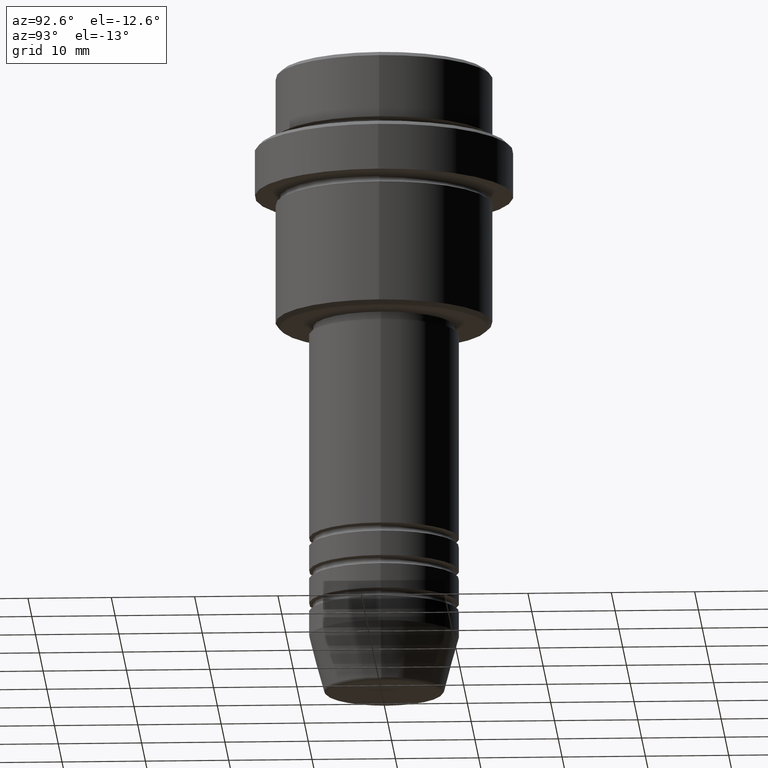
[diagram: clean part render]
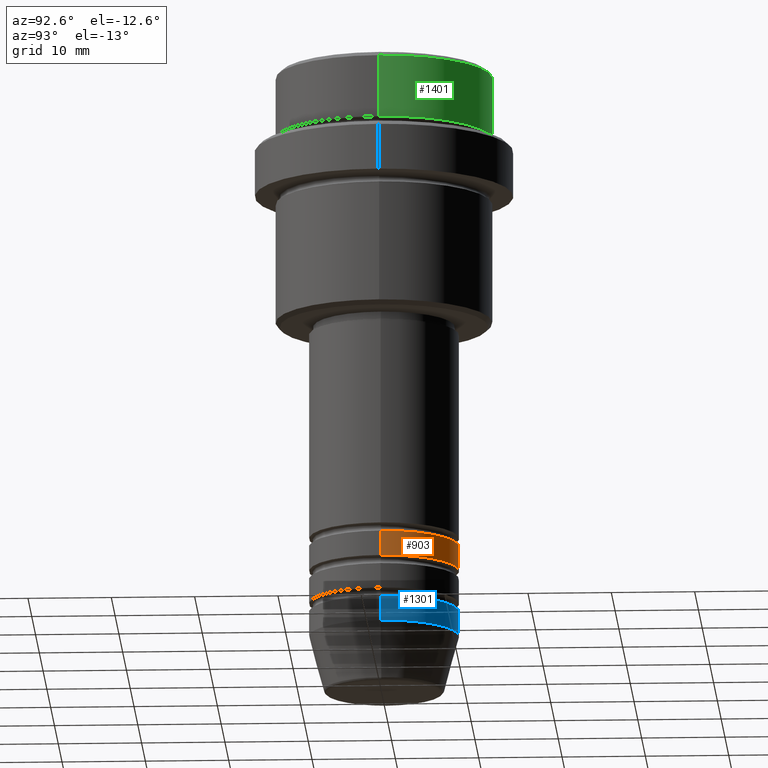
[diagram: same view with three faces highlighted in distinct colors, each labeled with its STEP entity id]
A machine part, auxiliary view with three faces highlighted in distinct colors.
Their STEP definitions:

[orange] entity #903 — the highlighted cylindrical surface (partial cylindrical patch) has radius 9 mm, axis along (-0, -0, 1).
#36 = CIRCLE ( 'NONE', #858, 9.000000000000000000 ) ;
#72 = ORIENTED_EDGE ( 'NONE', *, *, #1178, .T. ) ;
#107 = VECTOR ( 'NONE', #247, 1000.000000000000000 ) ;
#154 = ORIENTED_EDGE ( 'NONE', *, *, #1349, .F. ) ;
#247 = DIRECTION ( 'NONE',  ( -0.000000000000000000, -0.000000000000000000, 1.000000000000000000 ) ) ;
#257 = CARTESIAN_POINT ( 'NONE',  ( 0.000000000000000000, 0.000000000000000000, -60.99999999999987921 ) ) ;
#261 = VERTEX_POINT ( 'NONE', #273 ) ;
#273 = CARTESIAN_POINT ( 'NONE',  ( -9.000000000000000000, 1.102182119232617714E-15, -60.99999999999987921 ) ) ;
#300 = CARTESIAN_POINT ( 'NONE',  ( -9.000000000000000000, 1.102182119232617714E-15, -57.99999999999987921 ) ) ;
#318 = CARTESIAN_POINT ( 'NONE',  ( 9.000000000000000000, 0.000000000000000000, -60.99999999999987921 ) ) ;
#336 = DIRECTION ( 'NONE',  ( -0.000000000000000000, -0.000000000000000000, 1.000000000000000000 ) ) ;
#360 = ORIENTED_EDGE ( 'NONE', *, *, #1265, .F. ) ;
#525 = EDGE_CURVE ( 'NONE', #261, #926, #1022, .T. ) ;
#533 = AXIS2_PLACEMENT_3D ( 'NONE', #727, #854, #1399 ) ;
#555 = CARTESIAN_POINT ( 'NONE',  ( -9.000000000000000000, 1.102182119232617714E-15, 0.000000000000000000 ) ) ;
#586 = DIRECTION ( 'NONE',  ( -0.000000000000000000, -0.000000000000000000, 1.000000000000000000 ) ) ;
#595 = EDGE_LOOP ( 'NONE', ( #72, #1310, #154, #360 ) ) ;
#602 = VERTEX_POINT ( 'NONE', #318 ) ;
#719 = DIRECTION ( 'NONE',  ( -0.000000000000000000, -0.000000000000000000, 1.000000000000000000 ) ) ;
#721 = CYLINDRICAL_SURFACE ( 'NONE', #533, 9.000000000000000000 ) ;
#727 = CARTESIAN_POINT ( 'NONE',  ( 0.000000000000000000, 0.000000000000000000, 0.000000000000000000 ) ) ;
#819 = VERTEX_POINT ( 'NONE', #1354 ) ;
#854 = DIRECTION ( 'NONE',  ( -0.000000000000000000, -0.000000000000000000, 1.000000000000000000 ) ) ;
#858 = AXIS2_PLACEMENT_3D ( 'NONE', #257, #586, #905 ) ;
#903 = ADVANCED_FACE ( 'NONE', ( #1067 ), #721, .T. ) ;
#905 = DIRECTION ( 'NONE',  ( 1.000000000000000000, 0.000000000000000000, 0.000000000000000000 ) ) ;
#914 = LINE ( 'NONE', #1220, #1252 ) ;
#926 = VERTEX_POINT ( 'NONE', #300 ) ;
#953 = CARTESIAN_POINT ( 'NONE',  ( 0.000000000000000000, 0.000000000000000000, -57.99999999999987921 ) ) ;
#1022 = LINE ( 'NONE', #555, #107 ) ;
#1028 = CIRCLE ( 'NONE', #1203, 9.000000000000000000 ) ;
#1067 = FACE_OUTER_BOUND ( 'NONE', #595, .T. ) ;
#1072 = DIRECTION ( 'NONE',  ( 1.000000000000000000, 0.000000000000000000, 0.000000000000000000 ) ) ;
#1178 = EDGE_CURVE ( 'NONE', #602, #261, #36, .T. ) ;
#1203 = AXIS2_PLACEMENT_3D ( 'NONE', #953, #719, #1072 ) ;
#1220 = CARTESIAN_POINT ( 'NONE',  ( 9.000000000000000000, 0.000000000000000000, 0.000000000000000000 ) ) ;
#1252 = VECTOR ( 'NONE', #336, 1000.000000000000000 ) ;
#1265 = EDGE_CURVE ( 'NONE', #602, #819, #914, .T. ) ;
#1310 = ORIENTED_EDGE ( 'NONE', *, *, #525, .T. ) ;
#1349 = EDGE_CURVE ( 'NONE', #819, #926, #1028, .T. ) ;
#1354 = CARTESIAN_POINT ( 'NONE',  ( 9.000000000000000000, 0.000000000000000000, -57.99999999999987921 ) ) ;
#1399 = DIRECTION ( 'NONE',  ( 1.000000000000000000, 0.000000000000000000, 0.000000000000000000 ) ) ;

[blue] entity #1301 — the highlighted cylindrical surface (partial cylindrical patch) has radius 9 mm, axis along (-0, -0, 1).
#18 = LINE ( 'NONE', #226, #265 ) ;
#20 = DIRECTION ( 'NONE',  ( 1.000000000000000000, 0.000000000000000000, 0.000000000000000000 ) ) ;
#39 = CARTESIAN_POINT ( 'NONE',  ( 0.000000000000000000, 0.000000000000000000, -68.99999999999998579 ) ) ;
#69 = CARTESIAN_POINT ( 'NONE',  ( 9.000000000000000000, 0.000000000000000000, -65.99999999999998579 ) ) ;
#123 = DIRECTION ( 'NONE',  ( -0.000000000000000000, -0.000000000000000000, 1.000000000000000000 ) ) ;
#126 = ORIENTED_EDGE ( 'NONE', *, *, #661, .F. ) ;
#226 = CARTESIAN_POINT ( 'NONE',  ( 9.000000000000000000, 0.000000000000000000, 0.000000000000000000 ) ) ;
#262 = AXIS2_PLACEMENT_3D ( 'NONE', #562, #451, #898 ) ;
#265 = VECTOR ( 'NONE', #123, 1000.000000000000000 ) ;
#321 = EDGE_CURVE ( 'NONE', #639, #464, #948, .T. ) ;
#345 = AXIS2_PLACEMENT_3D ( 'NONE', #677, #1027, #20 ) ;
#377 = VERTEX_POINT ( 'NONE', #69 ) ;
#449 = VECTOR ( 'NONE', #608, 1000.000000000000000 ) ;
#451 = DIRECTION ( 'NONE',  ( -0.000000000000000000, -0.000000000000000000, 1.000000000000000000 ) ) ;
#464 = VERTEX_POINT ( 'NONE', #517 ) ;
#517 = CARTESIAN_POINT ( 'NONE',  ( -9.000000000000000000, 1.102182119232617714E-15, -65.99999999999998579 ) ) ;
#536 = ORIENTED_EDGE ( 'NONE', *, *, #1191, .F. ) ;
#562 = CARTESIAN_POINT ( 'NONE',  ( 0.000000000000000000, 0.000000000000000000, 0.000000000000000000 ) ) ;
#604 = AXIS2_PLACEMENT_3D ( 'NONE', #39, #679, #785 ) ;
#608 = DIRECTION ( 'NONE',  ( -0.000000000000000000, -0.000000000000000000, 1.000000000000000000 ) ) ;
#639 = VERTEX_POINT ( 'NONE', #1097 ) ;
#661 = EDGE_CURVE ( 'NONE', #1292, #377, #18, .T. ) ;
#677 = CARTESIAN_POINT ( 'NONE',  ( 0.000000000000000000, 0.000000000000000000, -65.99999999999998579 ) ) ;
#679 = DIRECTION ( 'NONE',  ( -0.000000000000000000, -0.000000000000000000, 1.000000000000000000 ) ) ;
#699 = FACE_OUTER_BOUND ( 'NONE', #1260, .T. ) ;
#714 = CIRCLE ( 'NONE', #345, 9.000000000000000000 ) ;
#758 = CIRCLE ( 'NONE', #604, 9.000000000000000000 ) ;
#785 = DIRECTION ( 'NONE',  ( 1.000000000000000000, 0.000000000000000000, 0.000000000000000000 ) ) ;
#809 = EDGE_CURVE ( 'NONE', #1292, #639, #758, .T. ) ;
#852 = ORIENTED_EDGE ( 'NONE', *, *, #321, .T. ) ;
#898 = DIRECTION ( 'NONE',  ( 1.000000000000000000, 0.000000000000000000, 0.000000000000000000 ) ) ;
#948 = LINE ( 'NONE', #1091, #449 ) ;
#974 = ORIENTED_EDGE ( 'NONE', *, *, #809, .T. ) ;
#1027 = DIRECTION ( 'NONE',  ( -0.000000000000000000, -0.000000000000000000, 1.000000000000000000 ) ) ;
#1091 = CARTESIAN_POINT ( 'NONE',  ( -9.000000000000000000, 1.102182119232617714E-15, 0.000000000000000000 ) ) ;
#1097 = CARTESIAN_POINT ( 'NONE',  ( -9.000000000000000000, 1.102182119232617714E-15, -68.99999999999998579 ) ) ;
#1135 = CARTESIAN_POINT ( 'NONE',  ( 9.000000000000000000, 0.000000000000000000, -68.99999999999998579 ) ) ;
#1147 = CYLINDRICAL_SURFACE ( 'NONE', #262, 9.000000000000000000 ) ;
#1191 = EDGE_CURVE ( 'NONE', #377, #464, #714, .T. ) ;
#1260 = EDGE_LOOP ( 'NONE', ( #974, #852, #536, #126 ) ) ;
#1292 = VERTEX_POINT ( 'NONE', #1135 ) ;
#1301 = ADVANCED_FACE ( 'NONE', ( #699 ), #1147, .T. ) ;

[green] entity #1401 — the highlighted cylindrical surface (partial cylindrical patch) has radius 13 mm, axis along (-0, -0, 1).
#17 = ORIENTED_EDGE ( 'NONE', *, *, #1036, .F. ) ;
#23 = EDGE_CURVE ( 'NONE', #1346, #884, #1118, .T. ) ;
#48 = VECTOR ( 'NONE', #470, 1000.000000000000000 ) ;
#74 = DIRECTION ( 'NONE',  ( -0.000000000000000000, -0.000000000000000000, 1.000000000000000000 ) ) ;
#141 = CARTESIAN_POINT ( 'NONE',  ( 12.99999999999999822, 0.000000000000000000, -7.999999999999998224 ) ) ;
#177 = DIRECTION ( 'NONE',  ( 1.000000000000000000, 0.000000000000000000, 0.000000000000000000 ) ) ;
#319 = EDGE_LOOP ( 'NONE', ( #1251, #1257, #486, #17 ) ) ;
#346 = AXIS2_PLACEMENT_3D ( 'NONE', #569, #692, #1244 ) ;
#369 = FACE_OUTER_BOUND ( 'NONE', #319, .T. ) ;
#391 = CYLINDRICAL_SURFACE ( 'NONE', #836, 12.99999999999999822 ) ;
#460 = AXIS2_PLACEMENT_3D ( 'NONE', #634, #887, #1332 ) ;
#470 = DIRECTION ( 'NONE',  ( -0.000000000000000000, -0.000000000000000000, 1.000000000000000000 ) ) ;
#486 = ORIENTED_EDGE ( 'NONE', *, *, #1061, .T. ) ;
#521 = EDGE_CURVE ( 'NONE', #1170, #1346, #1030, .T. ) ;
#569 = CARTESIAN_POINT ( 'NONE',  ( 0.000000000000000000, 0.000000000000000000, -7.999999999999998224 ) ) ;
#634 = CARTESIAN_POINT ( 'NONE',  ( 0.000000000000000000, 0.000000000000000000, -0.5000000000000038858 ) ) ;
#647 = LINE ( 'NONE', #986, #1279 ) ;
#692 = DIRECTION ( 'NONE',  ( -0.000000000000000000, -0.000000000000000000, 1.000000000000000000 ) ) ;
#793 = CARTESIAN_POINT ( 'NONE',  ( -12.99999999999999822, 1.592040838891558898E-15, 0.000000000000000000 ) ) ;
#836 = AXIS2_PLACEMENT_3D ( 'NONE', #963, #74, #177 ) ;
#884 = VERTEX_POINT ( 'NONE', #1232 ) ;
#887 = DIRECTION ( 'NONE',  ( 0.000000000000000000, 0.000000000000000000, -1.000000000000000000 ) ) ;
#935 = VERTEX_POINT ( 'NONE', #1167 ) ;
#963 = CARTESIAN_POINT ( 'NONE',  ( 0.000000000000000000, 0.000000000000000000, 0.000000000000000000 ) ) ;
#986 = CARTESIAN_POINT ( 'NONE',  ( 12.99999999999999822, 0.000000000000000000, 0.000000000000000000 ) ) ;
#1030 = CIRCLE ( 'NONE', #346, 12.99999999999999822 ) ;
#1036 = EDGE_CURVE ( 'NONE', #1170, #935, #647, .T. ) ;
#1061 = EDGE_CURVE ( 'NONE', #884, #935, #1386, .T. ) ;
#1118 = LINE ( 'NONE', #793, #48 ) ;
#1167 = CARTESIAN_POINT ( 'NONE',  ( 12.99999999999999822, 0.000000000000000000, -0.5000000000000038858 ) ) ;
#1170 = VERTEX_POINT ( 'NONE', #141 ) ;
#1232 = CARTESIAN_POINT ( 'NONE',  ( -12.99999999999999822, 1.592040838891558898E-15, -0.5000000000000038858 ) ) ;
#1244 = DIRECTION ( 'NONE',  ( 1.000000000000000000, 0.000000000000000000, 0.000000000000000000 ) ) ;
#1251 = ORIENTED_EDGE ( 'NONE', *, *, #521, .T. ) ;
#1257 = ORIENTED_EDGE ( 'NONE', *, *, #23, .T. ) ;
#1258 = CARTESIAN_POINT ( 'NONE',  ( -12.99999999999999822, 1.592040838891558898E-15, -7.999999999999998224 ) ) ;
#1279 = VECTOR ( 'NONE', #1404, 1000.000000000000000 ) ;
#1332 = DIRECTION ( 'NONE',  ( 1.000000000000000000, 0.000000000000000000, 0.000000000000000000 ) ) ;
#1346 = VERTEX_POINT ( 'NONE', #1258 ) ;
#1386 = CIRCLE ( 'NONE', #460, 12.99999999999999822 ) ;
#1401 = ADVANCED_FACE ( 'NONE', ( #369 ), #391, .T. ) ;
#1404 = DIRECTION ( 'NONE',  ( -0.000000000000000000, -0.000000000000000000, 1.000000000000000000 ) ) ;